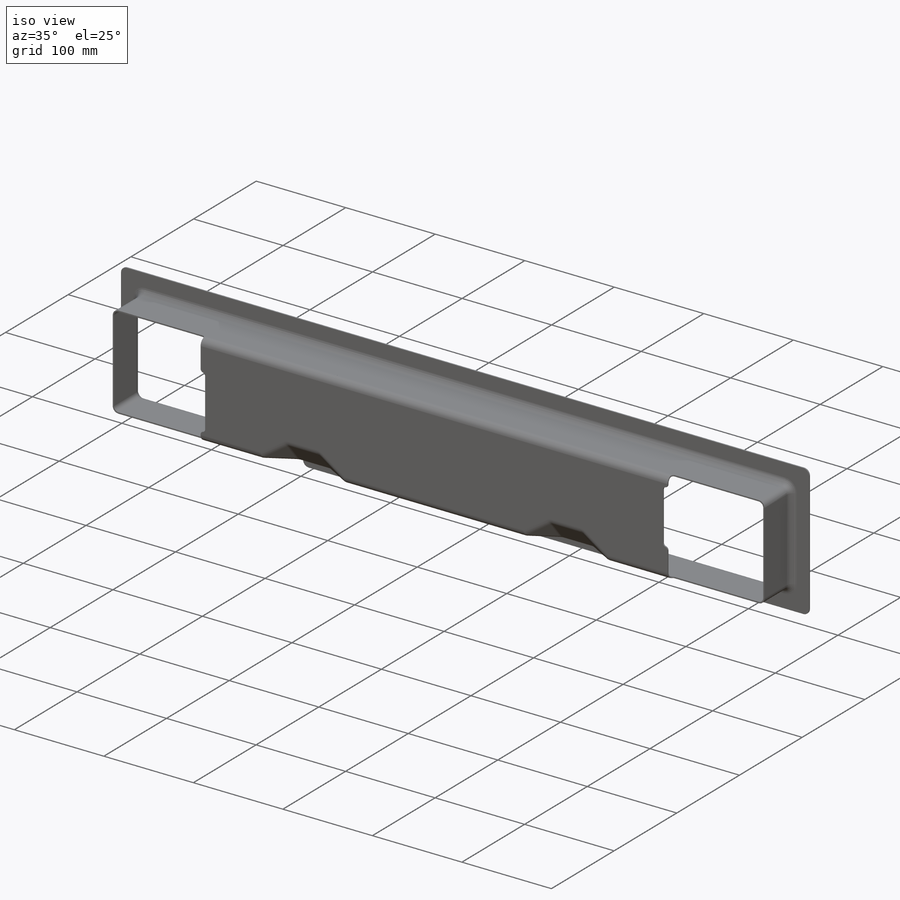
[diagram: iso view]
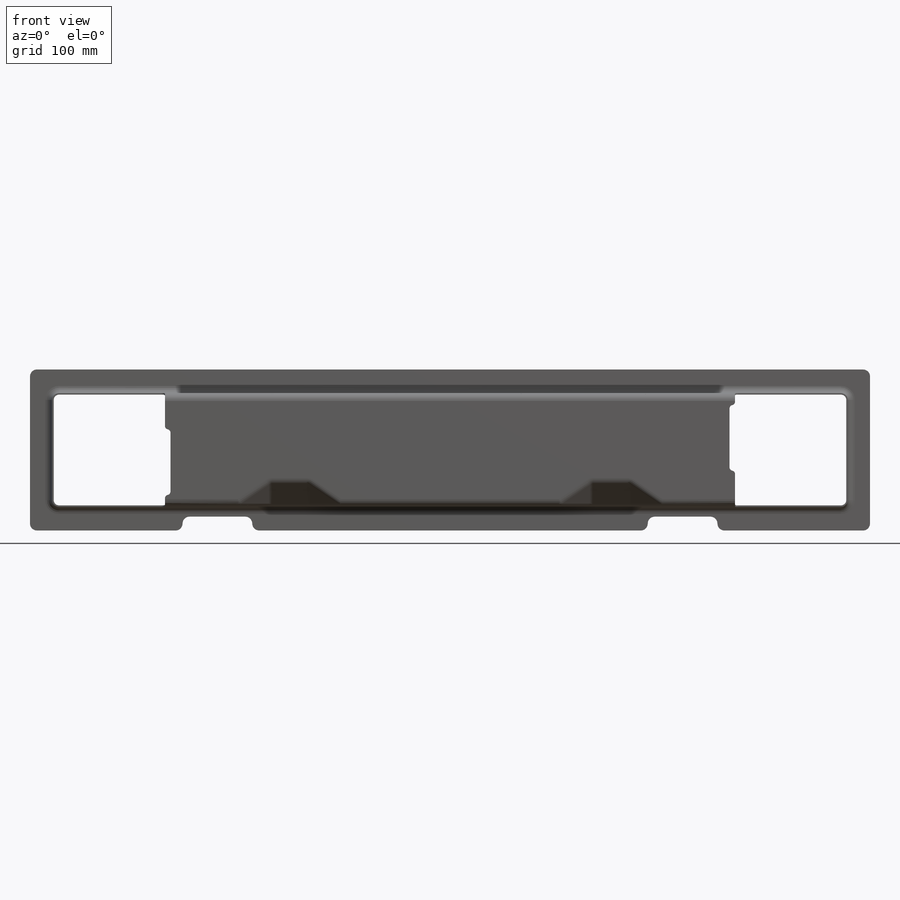
[diagram: front view]
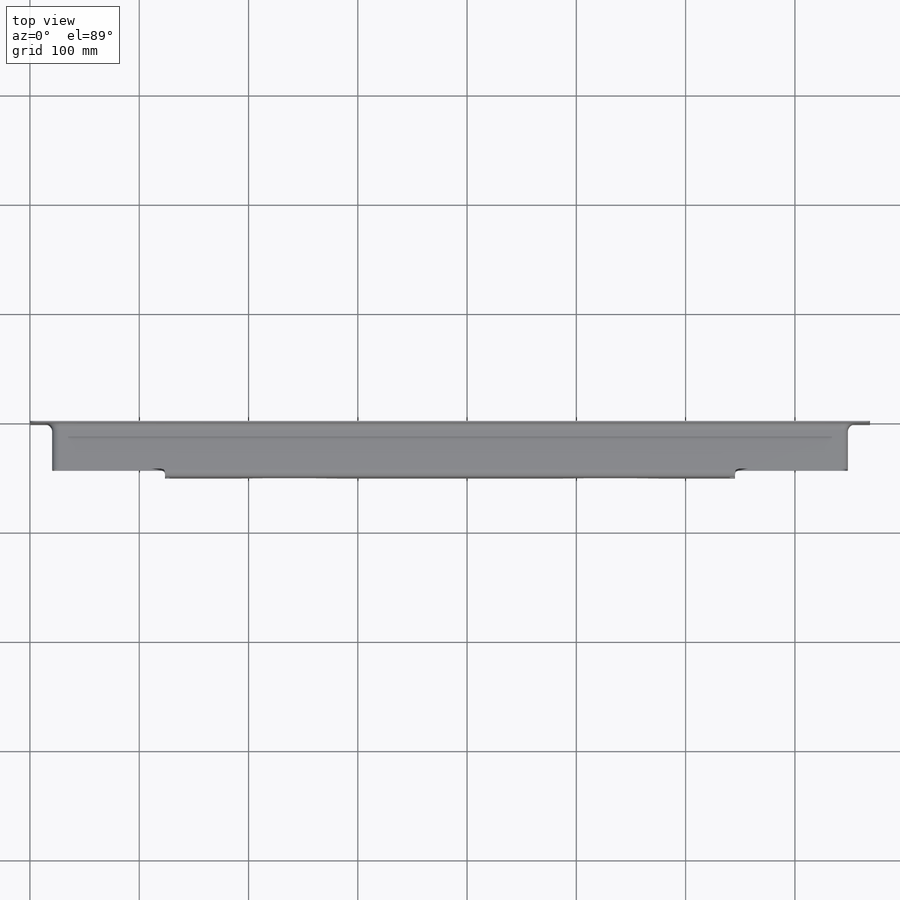
[diagram: top view]
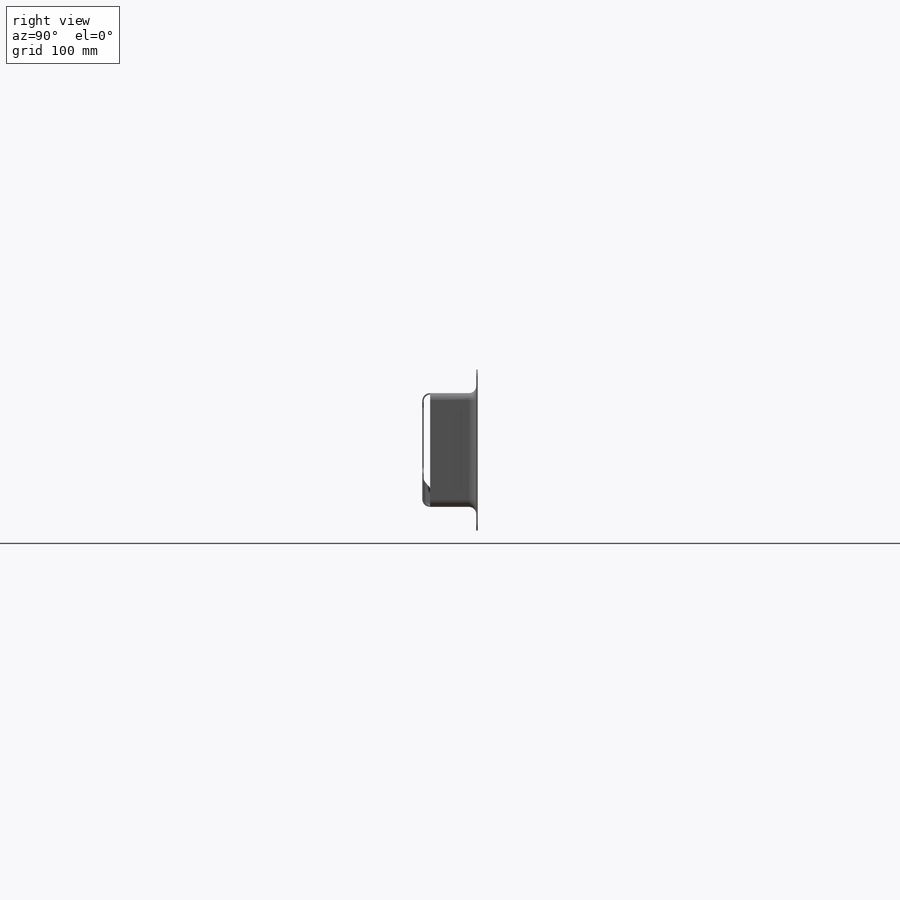
[diagram: right view]
SOLIDWORKS PART (.sldprt)
format: sldprt  version: not decoded by parser v0  size: 588,288 bytes
history: native  units: mm
features: fillet x9, sketch x7, cut_extrude x4, extrude x2, material x1, shell x1 (+16 scaffold rows collapsed)
feature tree (40):
  scaffold x16  (default folders/planes/origin — collapsed)
  material  "Material <not specified>"
  sketch  "Sketch1"  dims[D1=768.7437mm D2=147.3962mm]
  extrude  "Extrude1"  Depth=1.3843mm
  sketch  "Sketch2"  dims[D1=728.1164mm D2=104.14mm]
  extrude  "Extrude3"  Depth=50.8mm
  sketch  "Sketch6"  dims[c1.D1=~65.746462mm c2.D1=40.0deg]
  sketch  "Sketch5"  dims[D1=199.644mm D2=34.8996mm D3=34.8996mm D4=34.8996mm D5=23.749mm]
  cut_extrude  "Extrude6"  [1 undecoded]
  sketch  "Sketch4"  dims[c1.D1=103.2002mm c1.D2=103.2002mm c2.D1=103.2002mm c2.D2=103.2002mm]
  cut_extrude  "Extrude5"  Depth=43.6118mm
  fillet  "Fillet4"  Radius=3.175mm
  fillet  "Fillet5"  Radius=6.35mm
  fillet  "Fillet6"  Radius=6.35mm
  fillet  "Fillet7"  Radius=7.1882mm
  shell  "Shell2"  Thickness=1.3843mm
  sketch  "Sketch7"  dims[D4=59.8424mm D1=11.049mm D2=59.8424mm D3=5.08mm]
  cut_extrude  "Extrude7"  [1 undecoded]
  fillet  "Fillet8"  Radius=3.175mm
  fillet  "Fillet9"  Radius=3.175mm
  sketch  "Sketch8"  dims[D1=139.6238mm D2=63.7794mm D3=12.7mm]
  cut_extrude  "Extrude8"  [1 undecoded]
  fillet  "Fillet10"  Radius=6.35mm
  fillet  "Fillet12"  Radius=6.5532mm
  fillet  "Fillet13"  Radius=7.9375mm
decode coverage: 20 of 23 modeling features carry decoded parameters
note: ~ marks probable driven/reference dimensions
note: 3 parameter values undecoded
summary: no parameter record found for 3 features
note: suppression state not decoded; provenance and decode notes live in map.json
